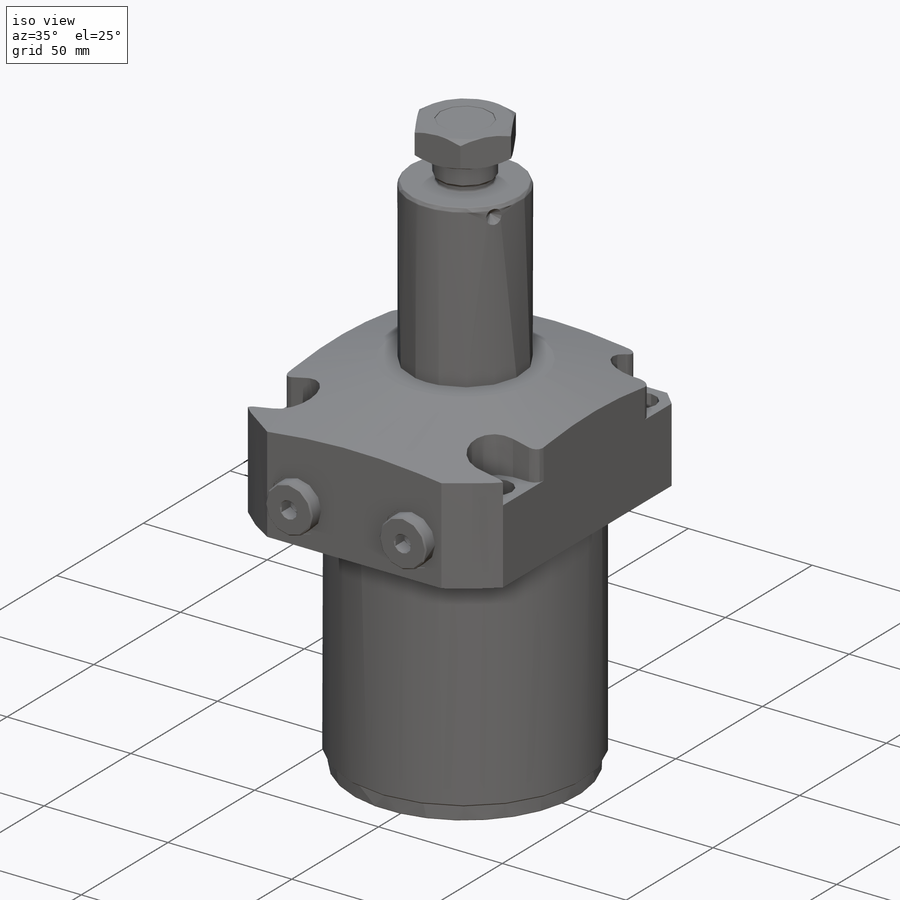
[diagram: iso view]
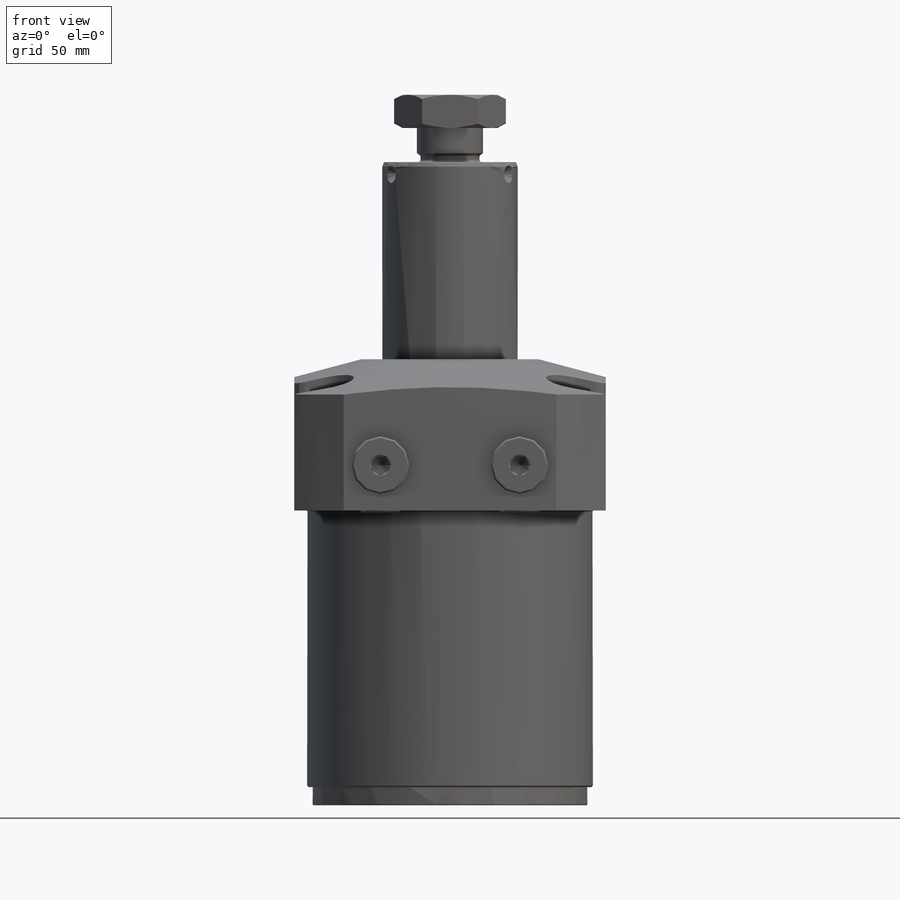
[diagram: front view]
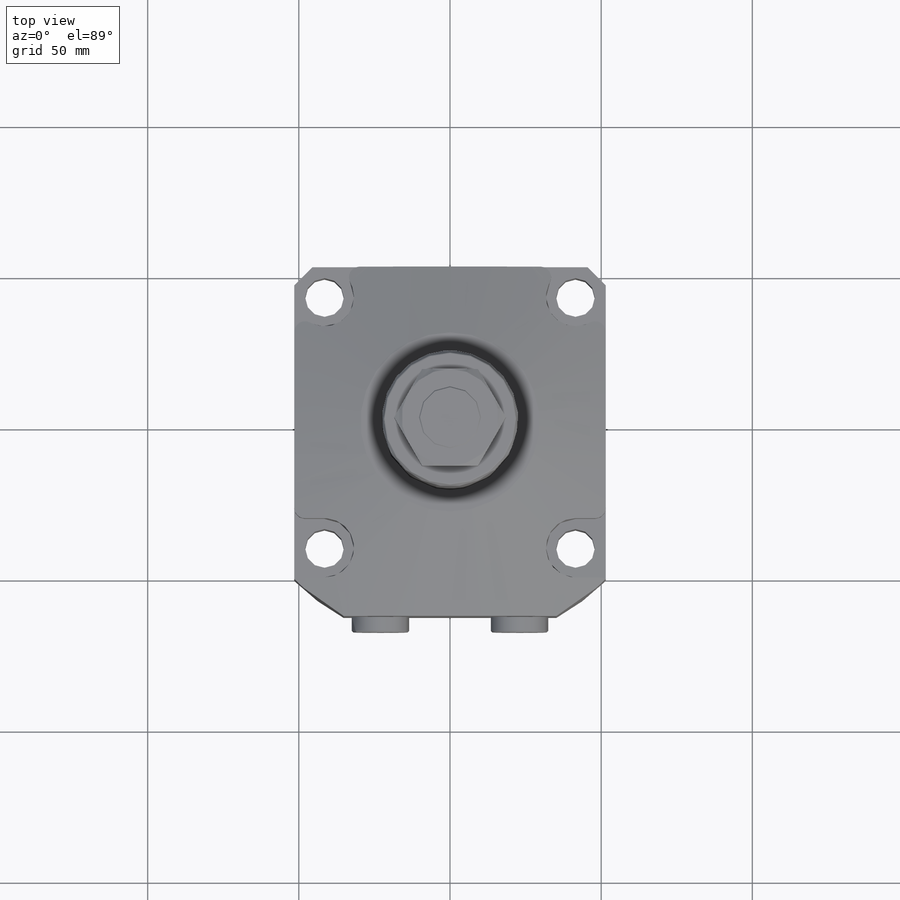
[diagram: top view]
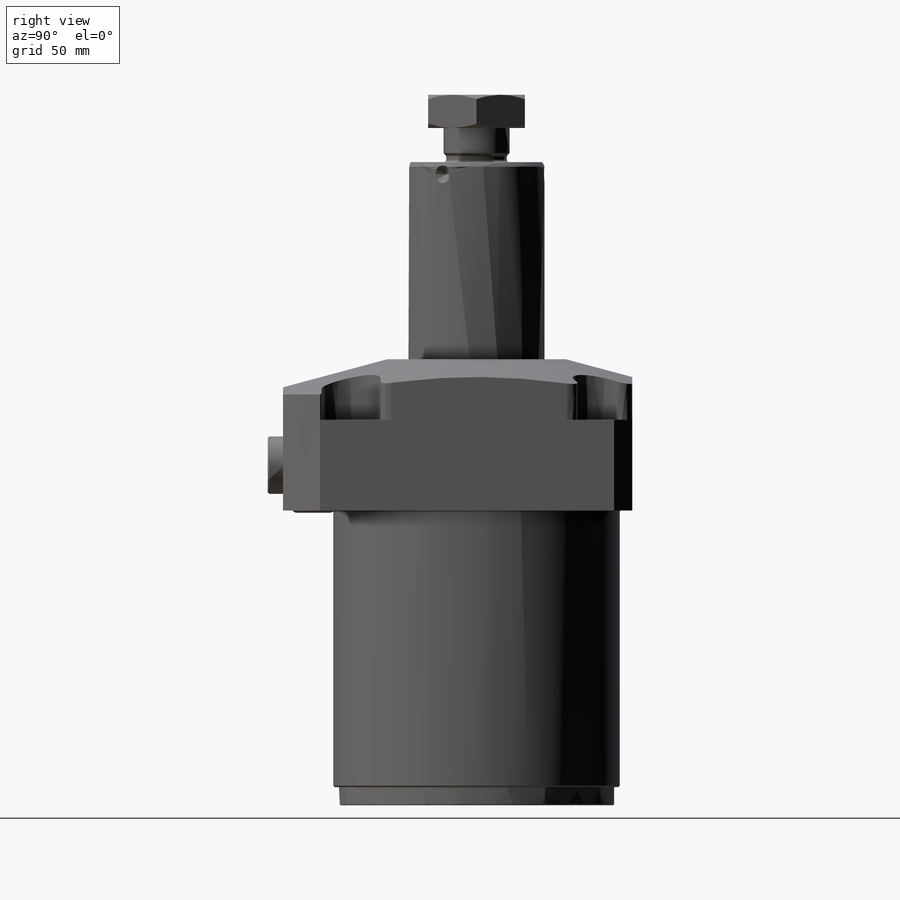
[diagram: right view]
SOLIDWORKS PART (.sldprt)
format: sldprt  version: not decoded by parser v0  size: 632,320 bytes
history: native  units: mm
features: sketch x14, fillet x5, revolve x4, cut_revolve x4, cut_extrude x4, extrude x2, pattern_circular x2, chamfer x2, plane x2, mirror x2, material x1 (+11 scaffold rows collapsed)
feature tree (53):
  scaffold x11  (default folders/planes/origin — collapsed)
  material  "AISI 1020"
  sketch  "Sketch1"  dims[c1.D1=22.25mm c1.D2=45.0mm c1.D3=20.0mm c1.D4=21.87mm c1.D5=61.5mm c1.D6=~0.699461mm c2.D6=25.0deg c2.D7=1.5mm c2.D8=0.75mm c3.D8=45.0deg c3.D9=1.0mm c3.D10=19.315mm c3.D5=137.5mm c3.D11=9.935mm]
  revolve  "Revolve2"  Angle=360deg
  fillet  "Fillet2"  Radius=0.75mm
  fillet  "Fillet3"  Radius=0.5mm
  sketch  "Sketch2"  dims[c1.D1=4.0mm c1.D2=1.5mm c2.D2=45.0deg c2.D3=6.0mm]
  cut_revolve  "Cut-Revolve1"  Angle=360deg
  sketch  "Sketch3"  dims[D2=20.5mm D1=32.0mm]
  extrude  "Extrude3"  Depth=11mm
  pattern_circular  "CirPattern1"  Count=3 Angle=360deg
  sketch  "Sketch4"  dims[c1.D1=~4.41713mm c2.D1=30.0deg c2.D2=3.0mm]
  cut_revolve  "Cut-Revolve3"  Angle=360deg
  sketch  "Sketch6"  dims[c1.D1=94.77mm c1.D2=141.5mm c1.D3=50.0mm c1.D4=146.05mm c1.D5=~24.894312mm c2.D5=15.0deg c2.D6=59.25mm]
  revolve  "Revolve3"  Angle=360deg
  sketch  "Sketch7"  dims[D1=103.0mm D2=115.5mm D3=51.5mm]
  cut_extrude  "Cut-Extrude5"  [1 undecoded]
  sketch  "Sketch8"  dims[D1=12.8mm D2=41.5mm D3=41.5mm]
  cut_extrude  "Cut-Extrude6"  [1 undecoded]
  pattern_circular  "CirPattern2"  Count=4 Angle=360deg
  chamfer  "Chamfer1"  Distance=6mm Angle=45deg
  sketch  "Sketch9"  dims[D1=9.75mm]
  cut_extrude  "Cut-Extrude7"  Depth=30mm
  fillet  "Fillet4"  Radius=3.5mm
  fillet  "Fillet5"  Radius=0.4mm
  sketch  "Sketch10"  dims[D1=91.0mm]
  extrude  "Extrude4"  Depth=6mm
  fillet  "Fillet6"  Radius=0.4mm
  plane  "Plane1"  Offset=15mm
  sketch  "Sketch11"  dims[c1.D1=23.0mm c1.D2=0.25mm c1.D3=11.89mm c1.D4=18.72mm c1.D5=21.5mm c1.D6=~1.736649mm c2.D6=45.0deg c2.D7=0.705mm]
  cut_revolve  "Cut-Revolve5"  Angle=360deg
  plane  "Plane2"  Offset=54mm
  sketch  "Sketch13"  dims[c1.D1=23.0mm c1.D2=8.75mm c1.D3=12.0mm c1.D4=2.25mm c1.D5=14.0mm c1.D6=~1.397068mm c2.D6=45.0deg c2.D7=0.75mm]
  cut_revolve  "Cut-Revolve6"  Angle=360deg
  sketch  "Sketch14"  dims[c1.D1=11.2mm c1.D2=~2.502582mm c1.D3=~1.886782mm c2.D3=31.0deg c2.D4=6.0mm c2.D5=5.3mm c2.D6=19.0mm c2.D7=~1.074619mm c3.D7=59.0deg c4.D7=~1.253686mm c5.D7=45.0deg c5.D8=0.5mm c5.D9=~0.70036mm c6.D9=45.0deg c6.D10=0.5mm c6.D3=~2.773157mm c7.D3=59.0deg c7.D11=0.001mm]
  revolve  "Revolve6"  Angle=360deg
  sketch  "Sketch15"  dims[D1=6.0mm]
  cut_extrude  "Cut-Extrude8"  Depth=5.3mm
  mirror  "Mirror1"
  sketch  "Sketch16"  dims[c1.D1=3.0mm c1.D3=3.0mm c1.D2=11.0mm c2.D3=0.75mm]
  revolve  "Revolve7"  Angle=360deg
  mirror  "Mirror3"
  chamfer  "Chamfer2"  Distance=0.499985mm Angle=45deg
decode coverage: 35 of 39 modeling features carry decoded parameters
note: ~ marks probable driven/reference dimensions
note: 2 parameter values undecoded
note: suppression state not decoded; provenance and decode notes live in map.json
